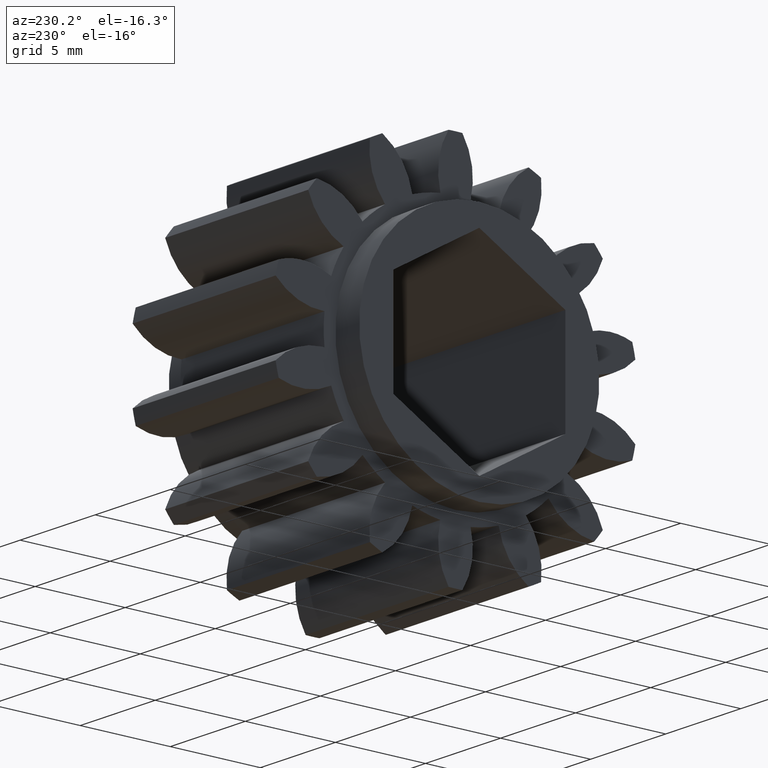
[diagram: clean part render]
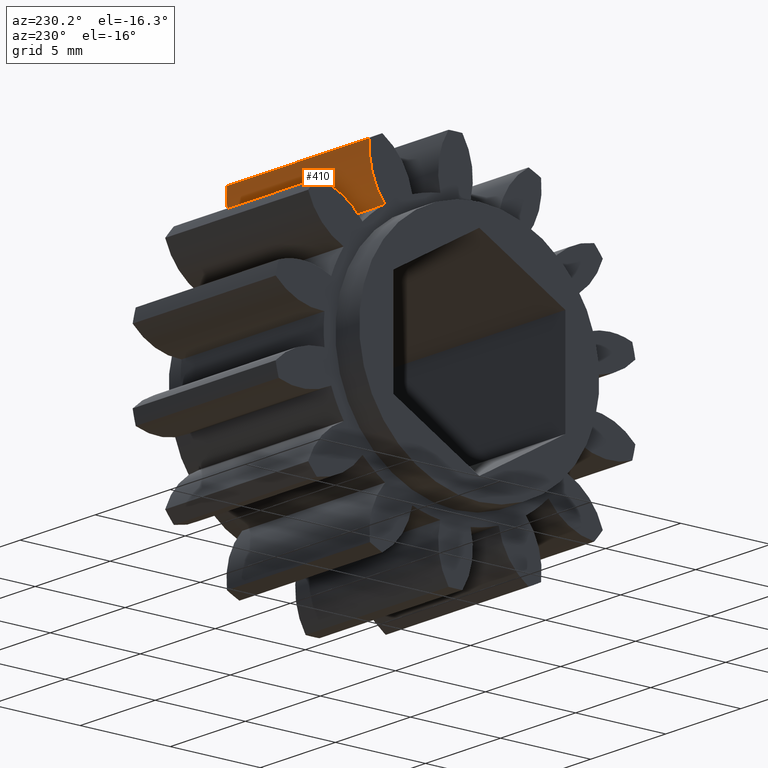
[diagram: same view with one face highlighted and labeled with its STEP entity id]
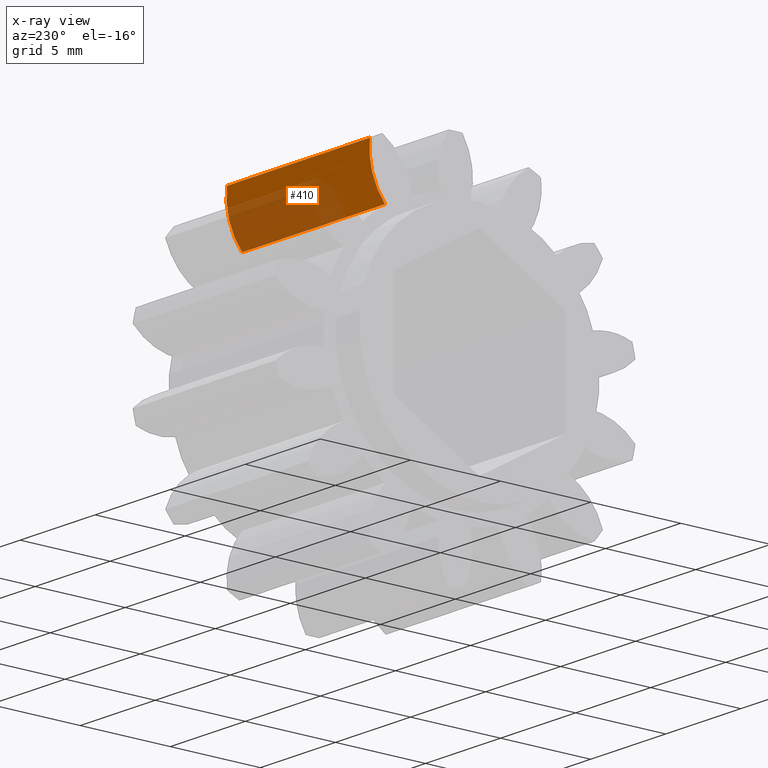
[diagram: x-ray of the same camera — body ghosted, the highlighted face saturated]
A machine part, auxiliary view. The second image highlights one B-rep face of the part: STEP entity #410.
The next image is the same camera in x-ray: the body ghosted, the highlighted face saturated — about 49% of this face is hidden behind the body in this view.
In plain terms, the highlighted cylindrical surface (partial cylindrical patch) has radius 3.556 mm, axis along (-1, 0, 0).
Its self-contained STEP definition (entity closure, byte-faithful):
#90 = CARTESIAN_POINT ( 'NONE',  ( 0.3750000000000000600, 0.1870673311214633400, 0.3535616122079614500 ) ) ;
#286 = DIRECTION ( 'NONE',  ( 1.000000000000000000, -0.0000000000000000000, -0.0000000000000000000 ) ) ;
#299 = DIRECTION ( 'NONE',  ( 0.0000000000000000000, -9.146812478786590300E-016, 1.000000000000000000 ) ) ;
#300 = DIRECTION ( 'NONE',  ( 1.000000000000000000, -0.0000000000000000000, -0.0000000000000000000 ) ) ;
#306 = CARTESIAN_POINT ( 'NONE',  ( 0.3750000000000000600, 0.04825050301642915000, 0.3353987865781920500 ) ) ;
#365 = CARTESIAN_POINT ( 'NONE',  ( 0.2839999999999999700, 0.1870673311214633400, 0.3535616122079614500 ) ) ;
#410 = ADVANCED_FACE ( 'NONE', ( #741 ), #622, .T. ) ;
#622 = CYLINDRICAL_SURFACE ( 'NONE', #1744, 0.1400000000000000700 ) ;
#741 = FACE_OUTER_BOUND ( 'NONE', #1066, .T. ) ;
#816 = AXIS2_PLACEMENT_3D ( 'NONE', #306, #300, #299 ) ;
#857 = ORIENTED_EDGE ( 'NONE', *, *, #1589, .F. ) ;
#880 = CARTESIAN_POINT ( 'NONE',  ( 0.0000000000000000000, 0.1870673311214633100, 0.3535616122079614500 ) ) ;
#891 = ORIENTED_EDGE ( 'NONE', *, *, #2130, .T. ) ;
#892 = ORIENTED_EDGE ( 'NONE', *, *, #914, .T. ) ;
#896 = ORIENTED_EDGE ( 'NONE', *, *, #1604, .T. ) ;
#914 = EDGE_CURVE ( 'NONE', #2365, #2562, #2572, .T. ) ;
#1047 = DIRECTION ( 'NONE',  ( -1.000000000000000000, 0.0000000000000000000, 0.0000000000000000000 ) ) ;
#1049 = AXIS2_PLACEMENT_3D ( 'NONE', #1600, #1597, #1580 ) ;
#1066 = EDGE_LOOP ( 'NONE', ( #857, #891, #892, #896 ) ) ;
#1090 = CARTESIAN_POINT ( 'NONE',  ( 0.5679999999999999500, 0.04825050301642915000, 0.3353987865781920500 ) ) ;
#1105 = DIRECTION ( 'NONE',  ( 0.0000000000000000000, 0.0000000000000000000, 1.000000000000000000 ) ) ;
#1532 = DIRECTION ( 'NONE',  ( -1.000000000000000000, 0.0000000000000000000, 0.0000000000000000000 ) ) ;
#1580 = DIRECTION ( 'NONE',  ( 0.0000000000000000000, 0.0000000000000000000, -1.000000000000000000 ) ) ;
#1589 = EDGE_CURVE ( 'NONE', #2375, #1825, #2179, .T. ) ;
#1597 = DIRECTION ( 'NONE',  ( 1.000000000000000000, 0.0000000000000000000, 0.0000000000000000000 ) ) ;
#1600 = CARTESIAN_POINT ( 'NONE',  ( 0.0000000000000000000, 0.04825050301642915000, 0.3353987865781920500 ) ) ;
#1604 = EDGE_CURVE ( 'NONE', #2562, #1825, #2169, .T. ) ;
#1744 = AXIS2_PLACEMENT_3D ( 'NONE', #1090, #1047, #1105 ) ;
#1776 = CARTESIAN_POINT ( 'NONE',  ( 0.5679999999999999500, 0.1538394207783326000, 0.2434695722561387400 ) ) ;
#1825 = VERTEX_POINT ( 'NONE', #90 ) ;
#1979 = VECTOR ( 'NONE', #1532, 39.37007874015748100 ) ;
#2009 = LINE ( 'NONE', #1776, #1979 ) ;
#2130 = EDGE_CURVE ( 'NONE', #2375, #2365, #2009, .T. ) ;
#2165 = VECTOR ( 'NONE', #286, 39.37007874015748100 ) ;
#2169 = LINE ( 'NONE', #365, #2165 ) ;
#2179 = CIRCLE ( 'NONE', #816, 0.1400000000000000700 ) ;
#2310 = CARTESIAN_POINT ( 'NONE',  ( 0.0000000000000000000, 0.1538394207783326000, 0.2434695722561387400 ) ) ;
#2365 = VERTEX_POINT ( 'NONE', #2310 ) ;
#2375 = VERTEX_POINT ( 'NONE', #2435 ) ;
#2435 = CARTESIAN_POINT ( 'NONE',  ( 0.3750000000000000600, 0.1538394207783326000, 0.2434695722561387400 ) ) ;
#2562 = VERTEX_POINT ( 'NONE', #880 ) ;
#2572 = CIRCLE ( 'NONE', #1049, 0.1400000000000000400 ) ;